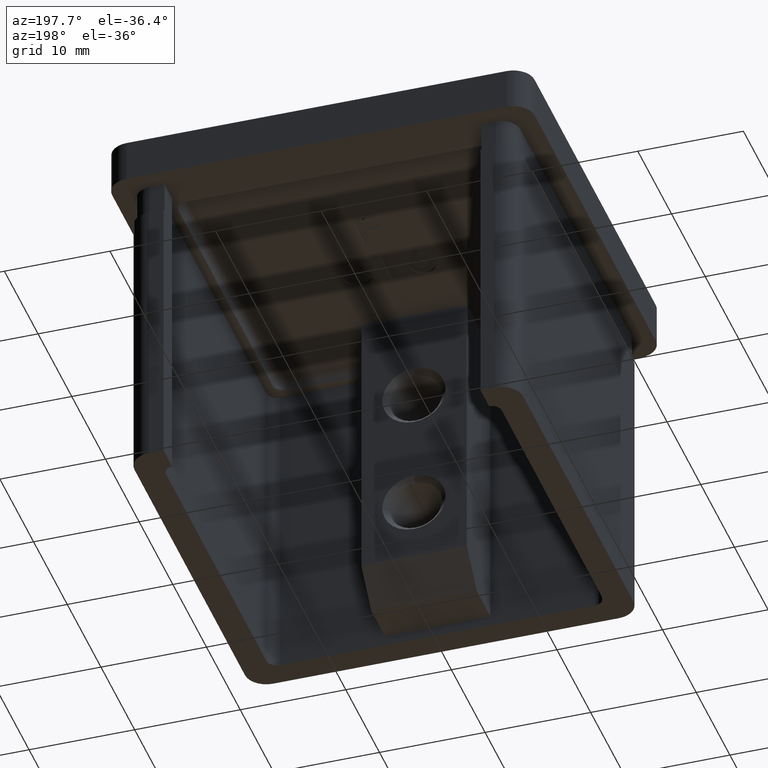
[diagram: clean part render]
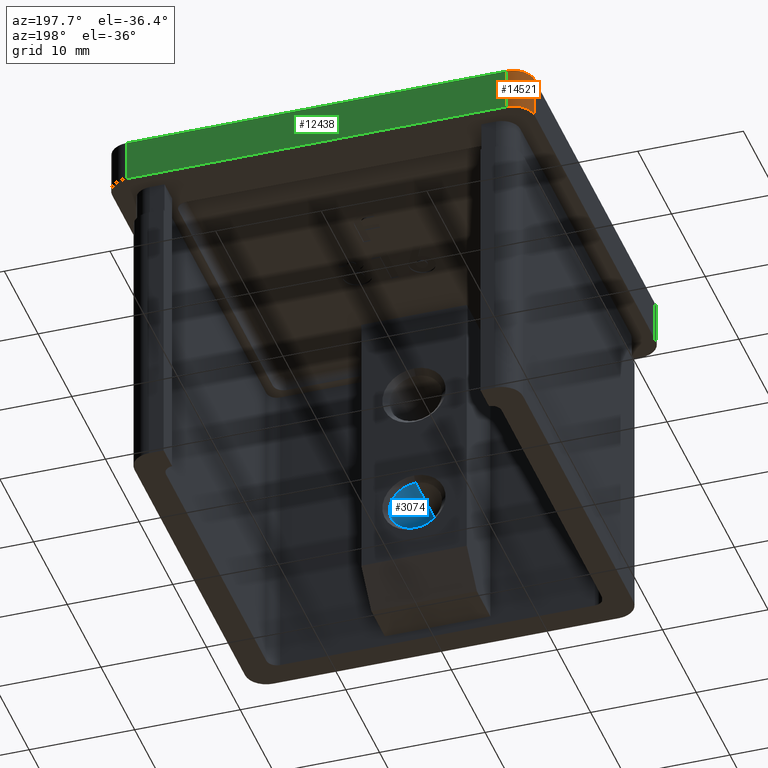
[diagram: same view with three faces highlighted in distinct colors, each labeled with its STEP entity id]
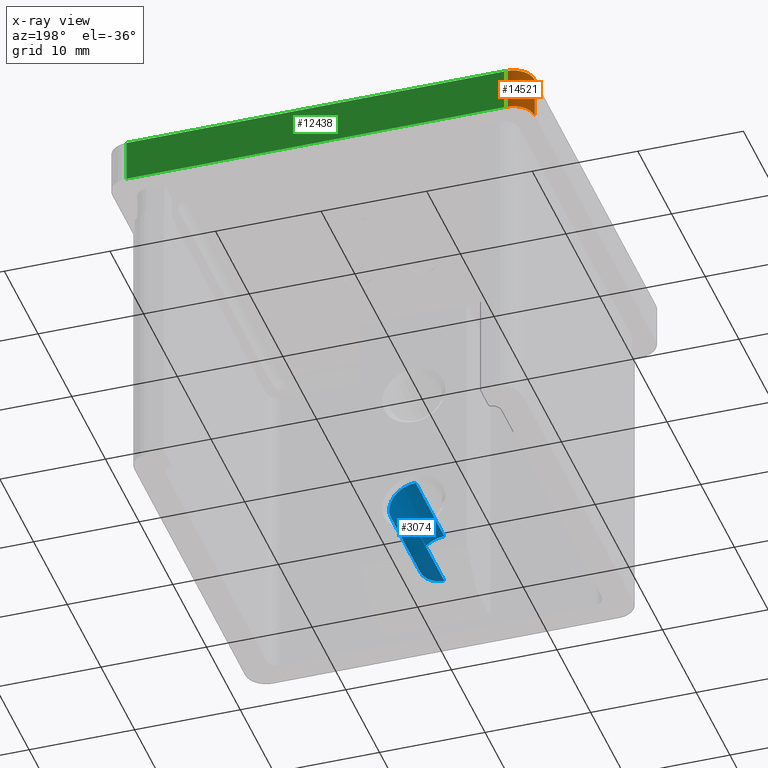
[diagram: x-ray of the same camera — body ghosted, the three highlighted faces saturated]
A machine part, auxiliary view with three faces highlighted in distinct colors.
The next image is the same camera in x-ray (body ghosted, the three faces saturated) — at least one of them is partly hidden behind the body in this view.
Their STEP definitions:

[orange] entity #14521 — the highlighted cylindrical surface (edge-blend (fillet) strip) has radius 2 mm, axis along (0, 0, 1).
#329 = FACE_OUTER_BOUND ( 'NONE', #4784, .T. ) ;
#2360 = CARTESIAN_POINT ( 'NONE',  ( -18.00000000000001066, 19.99999999999999645, -4.000000000000000000 ) ) ;
#2371 = EDGE_CURVE ( 'NONE', #13262, #10650, #3546, .T. ) ;
#3190 = VECTOR ( 'NONE', #5378, 1000.000000000000000 ) ;
#3546 = CIRCLE ( 'NONE', #6332, 2.000000000000001776 ) ;
#3709 = CARTESIAN_POINT ( 'NONE',  ( -18.00000000000001066, 19.99999999999999645, -4.000000000000000000 ) ) ;
#4021 = DIRECTION ( 'NONE',  ( 1.000000000000000000, 0.000000000000000000, 0.000000000000000000 ) ) ;
#4244 = EDGE_CURVE ( 'NONE', #10801, #6239, #10863, .T. ) ;
#4340 = ORIENTED_EDGE ( 'NONE', *, *, #2371, .F. ) ;
#4784 = EDGE_LOOP ( 'NONE', ( #5611, #16351, #4340, #14738 ) ) ;
#4863 = DIRECTION ( 'NONE',  ( 1.000000000000000000, 0.000000000000000000, 0.000000000000000000 ) ) ;
#4954 = AXIS2_PLACEMENT_3D ( 'NONE', #8636, #12493, #4863 ) ;
#5146 = DIRECTION ( 'NONE',  ( -0.000000000000000000, 0.000000000000000000, 1.000000000000000000 ) ) ;
#5378 = DIRECTION ( 'NONE',  ( -0.000000000000000000, -0.000000000000000000, -1.000000000000000000 ) ) ;
#5611 = ORIENTED_EDGE ( 'NONE', *, *, #4244, .F. ) ;
#6239 = VERTEX_POINT ( 'NONE', #3709 ) ;
#6332 = AXIS2_PLACEMENT_3D ( 'NONE', #11515, #5146, #6509 ) ;
#6509 = DIRECTION ( 'NONE',  ( 1.000000000000000000, 0.000000000000000000, 0.000000000000000000 ) ) ;
#6554 = DIRECTION ( 'NONE',  ( 0.000000000000000000, -0.000000000000000000, -1.000000000000000000 ) ) ;
#6965 = LINE ( 'NONE', #2360, #11729 ) ;
#7320 = EDGE_CURVE ( 'NONE', #6239, #13262, #6965, .T. ) ;
#8636 = CARTESIAN_POINT ( 'NONE',  ( -18.00000000000001066, 17.99999999999999645, -4.000000000000000000 ) ) ;
#9157 = CARTESIAN_POINT ( 'NONE',  ( -20.00000000000001066, 17.99999999999999645, -4.000000000000000000 ) ) ;
#9344 = EDGE_CURVE ( 'NONE', #10650, #10801, #15448, .T. ) ;
#10650 = VERTEX_POINT ( 'NONE', #15471 ) ;
#10801 = VERTEX_POINT ( 'NONE', #12051 ) ;
#10863 = CIRCLE ( 'NONE', #14208, 2.000000000000001776 ) ;
#11214 = DIRECTION ( 'NONE',  ( 0.000000000000000000, -0.000000000000000000, 1.000000000000000000 ) ) ;
#11515 = CARTESIAN_POINT ( 'NONE',  ( -18.00000000000001066, 17.99999999999999645, 0.000000000000000000 ) ) ;
#11729 = VECTOR ( 'NONE', #11214, 1000.000000000000000 ) ;
#12051 = CARTESIAN_POINT ( 'NONE',  ( -20.00000000000001066, 17.99999999999999645, -4.000000000000000000 ) ) ;
#12493 = DIRECTION ( 'NONE',  ( 0.000000000000000000, 0.000000000000000000, 1.000000000000000000 ) ) ;
#12524 = CARTESIAN_POINT ( 'NONE',  ( -18.00000000000001066, 19.99999999999999645, 0.000000000000000000 ) ) ;
#13206 = CYLINDRICAL_SURFACE ( 'NONE', #4954, 2.000000000000001776 ) ;
#13262 = VERTEX_POINT ( 'NONE', #12524 ) ;
#14159 = CARTESIAN_POINT ( 'NONE',  ( -18.00000000000001066, 17.99999999999999645, -4.000000000000000000 ) ) ;
#14208 = AXIS2_PLACEMENT_3D ( 'NONE', #14159, #6554, #4021 ) ;
#14521 = ADVANCED_FACE ( 'NONE', ( #329 ), #13206, .T. ) ;
#14738 = ORIENTED_EDGE ( 'NONE', *, *, #7320, .F. ) ;
#15448 = LINE ( 'NONE', #9157, #3190 ) ;
#15471 = CARTESIAN_POINT ( 'NONE',  ( -20.00000000000001066, 17.99999999999999645, 0.000000000000000000 ) ) ;
#16351 = ORIENTED_EDGE ( 'NONE', *, *, #9344, .F. ) ;

[blue] entity #3074 — the highlighted cylindrical surface (edge-blend (fillet) strip) has radius 2.5 mm, axis along (-0, -1, -0).
#229 = CIRCLE ( 'NONE', #15383, 2.499999999999988454 ) ;
#620 = LINE ( 'NONE', #11849, #12687 ) ;
#1445 = CARTESIAN_POINT ( 'NONE',  ( -1.946275119388612915E-15, -18.40000000000000568, -26.49999999999998934 ) ) ;
#1783 = VERTEX_POINT ( 'NONE', #13629 ) ;
#2353 = CYLINDRICAL_SURFACE ( 'NONE', #11979, 2.499999999999988454 ) ;
#2496 = DIRECTION ( 'NONE',  ( -0.000000000000000000, -1.000000000000000000, -0.000000000000000000 ) ) ;
#2624 = DIRECTION ( 'NONE',  ( -0.000000000000000000, -1.000000000000000000, -0.000000000000000000 ) ) ;
#2632 = DIRECTION ( 'NONE',  ( 0.000000000000000000, 1.000000000000000000, 0.000000000000000000 ) ) ;
#3074 = ADVANCED_FACE ( 'NONE', ( #4328 ), #2353, .F. ) ;
#3268 = CARTESIAN_POINT ( 'NONE',  ( -1.640113419601775833E-15, -17.90000000000001279, -21.50000000000001066 ) ) ;
#3449 = LINE ( 'NONE', #1445, #12165 ) ;
#3790 = CARTESIAN_POINT ( 'NONE',  ( -1.640113419601775833E-15, -9.400000000000016342, -21.50000000000001066 ) ) ;
#4328 = FACE_OUTER_BOUND ( 'NONE', #12550, .T. ) ;
#4958 = CARTESIAN_POINT ( 'NONE',  ( -1.946275119388612915E-15, -9.400000000000016342, -26.49999999999998934 ) ) ;
#5632 = DIRECTION ( 'NONE',  ( -0.000000000000000000, -1.000000000000000000, -0.000000000000000000 ) ) ;
#5845 = DIRECTION ( 'NONE',  ( 0.000000000000000000, 0.000000000000000000, 1.000000000000000000 ) ) ;
#6403 = ORIENTED_EDGE ( 'NONE', *, *, #10532, .T. ) ;
#7740 = EDGE_CURVE ( 'NONE', #9737, #11042, #229, .T. ) ;
#7796 = ORIENTED_EDGE ( 'NONE', *, *, #12755, .T. ) ;
#8497 = EDGE_CURVE ( 'NONE', #9737, #8605, #620, .T. ) ;
#8605 = VERTEX_POINT ( 'NONE', #3268 ) ;
#9737 = VERTEX_POINT ( 'NONE', #3790 ) ;
#10216 = CARTESIAN_POINT ( 'NONE',  ( -1.946275119388612915E-15, -9.400000000000016342, -24.00000000000000000 ) ) ;
#10477 = AXIS2_PLACEMENT_3D ( 'NONE', #13437, #12274, #5845 ) ;
#10532 = EDGE_CURVE ( 'NONE', #11042, #1783, #3449, .T. ) ;
#11042 = VERTEX_POINT ( 'NONE', #4958 ) ;
#11251 = DIRECTION ( 'NONE',  ( 0.000000000000000000, 0.000000000000000000, -1.000000000000000000 ) ) ;
#11849 = CARTESIAN_POINT ( 'NONE',  ( -1.640113419601776030E-15, -18.40000000000000568, -21.50000000000001066 ) ) ;
#11979 = AXIS2_PLACEMENT_3D ( 'NONE', #16346, #2624, #11251 ) ;
#12165 = VECTOR ( 'NONE', #2496, 1000.000000000000000 ) ;
#12274 = DIRECTION ( 'NONE',  ( 0.000000000000000000, -1.000000000000000000, 0.000000000000000000 ) ) ;
#12442 = CIRCLE ( 'NONE', #10477, 2.499999999999988454 ) ;
#12550 = EDGE_LOOP ( 'NONE', ( #14201, #13091, #6403, #7796 ) ) ;
#12687 = VECTOR ( 'NONE', #5632, 1000.000000000000000 ) ;
#12755 = EDGE_CURVE ( 'NONE', #1783, #8605, #12442, .T. ) ;
#13091 = ORIENTED_EDGE ( 'NONE', *, *, #7740, .T. ) ;
#13437 = CARTESIAN_POINT ( 'NONE',  ( -1.946275119388612915E-15, -17.90000000000001279, -24.00000000000000000 ) ) ;
#13629 = CARTESIAN_POINT ( 'NONE',  ( -1.946275119388612915E-15, -17.90000000000001279, -26.49999999999998934 ) ) ;
#14201 = ORIENTED_EDGE ( 'NONE', *, *, #8497, .F. ) ;
#15276 = DIRECTION ( 'NONE',  ( 0.000000000000000000, 0.000000000000000000, 1.000000000000000000 ) ) ;
#15383 = AXIS2_PLACEMENT_3D ( 'NONE', #10216, #2632, #15276 ) ;
#16346 = CARTESIAN_POINT ( 'NONE',  ( -1.946275119388612915E-15, -18.40000000000000568, -24.00000000000000000 ) ) ;

[green] entity #12438 — the highlighted planar face has unit normal (0, 1, 0).
#848 = DIRECTION ( 'NONE',  ( 0.000000000000000000, 1.000000000000000000, 0.000000000000000000 ) ) ;
#1274 = ORIENTED_EDGE ( 'NONE', *, *, #8183, .T. ) ;
#1685 = EDGE_CURVE ( 'NONE', #14093, #15692, #12083, .T. ) ;
#2081 = DIRECTION ( 'NONE',  ( -1.000000000000000000, -0.000000000000000000, -0.000000000000000000 ) ) ;
#2360 = CARTESIAN_POINT ( 'NONE',  ( -18.00000000000001066, 19.99999999999999645, -4.000000000000000000 ) ) ;
#3491 = ORIENTED_EDGE ( 'NONE', *, *, #7320, .T. ) ;
#3709 = CARTESIAN_POINT ( 'NONE',  ( -18.00000000000001066, 19.99999999999999645, -4.000000000000000000 ) ) ;
#3756 = AXIS2_PLACEMENT_3D ( 'NONE', #14724, #848, #8529 ) ;
#4366 = LINE ( 'NONE', #4778, #16024 ) ;
#4535 = FACE_OUTER_BOUND ( 'NONE', #12711, .T. ) ;
#4778 = CARTESIAN_POINT ( 'NONE',  ( -20.00000000000001066, 19.99999999999999645, -4.000000000000000000 ) ) ;
#6239 = VERTEX_POINT ( 'NONE', #3709 ) ;
#6840 = CARTESIAN_POINT ( 'NONE',  ( 17.99999999999998934, 19.99999999999999645, -4.000000000000000000 ) ) ;
#6965 = LINE ( 'NONE', #2360, #11729 ) ;
#7112 = VECTOR ( 'NONE', #11947, 1000.000000000000000 ) ;
#7320 = EDGE_CURVE ( 'NONE', #6239, #13262, #6965, .T. ) ;
#7372 = CARTESIAN_POINT ( 'NONE',  ( 17.99999999999998934, 19.99999999999999645, 0.000000000000000000 ) ) ;
#7624 = VECTOR ( 'NONE', #2081, 1000.000000000000000 ) ;
#8183 = EDGE_CURVE ( 'NONE', #15692, #6239, #4366, .T. ) ;
#8451 = ORIENTED_EDGE ( 'NONE', *, *, #1685, .T. ) ;
#8529 = DIRECTION ( 'NONE',  ( 0.000000000000000000, -0.000000000000000000, 1.000000000000000000 ) ) ;
#9432 = CARTESIAN_POINT ( 'NONE',  ( 17.99999999999998934, 19.99999999999999645, -4.000000000000000000 ) ) ;
#9622 = LINE ( 'NONE', #9721, #7624 ) ;
#9721 = CARTESIAN_POINT ( 'NONE',  ( -20.00000000000001066, 19.99999999999999645, 0.000000000000000000 ) ) ;
#10929 = PLANE ( 'NONE',  #3756 ) ;
#11214 = DIRECTION ( 'NONE',  ( 0.000000000000000000, -0.000000000000000000, 1.000000000000000000 ) ) ;
#11729 = VECTOR ( 'NONE', #11214, 1000.000000000000000 ) ;
#11851 = ORIENTED_EDGE ( 'NONE', *, *, #15769, .F. ) ;
#11947 = DIRECTION ( 'NONE',  ( -0.000000000000000000, 0.000000000000000000, -1.000000000000000000 ) ) ;
#12083 = LINE ( 'NONE', #6840, #7112 ) ;
#12438 = ADVANCED_FACE ( 'NONE', ( #4535 ), #10929, .T. ) ;
#12524 = CARTESIAN_POINT ( 'NONE',  ( -18.00000000000001066, 19.99999999999999645, 0.000000000000000000 ) ) ;
#12711 = EDGE_LOOP ( 'NONE', ( #1274, #3491, #11851, #8451 ) ) ;
#13262 = VERTEX_POINT ( 'NONE', #12524 ) ;
#14093 = VERTEX_POINT ( 'NONE', #7372 ) ;
#14724 = CARTESIAN_POINT ( 'NONE',  ( -20.00000000000001066, 19.99999999999999645, -4.000000000000000000 ) ) ;
#14952 = DIRECTION ( 'NONE',  ( -1.000000000000000000, -0.000000000000000000, -0.000000000000000000 ) ) ;
#15692 = VERTEX_POINT ( 'NONE', #9432 ) ;
#15769 = EDGE_CURVE ( 'NONE', #14093, #13262, #9622, .T. ) ;
#16024 = VECTOR ( 'NONE', #14952, 1000.000000000000000 ) ;